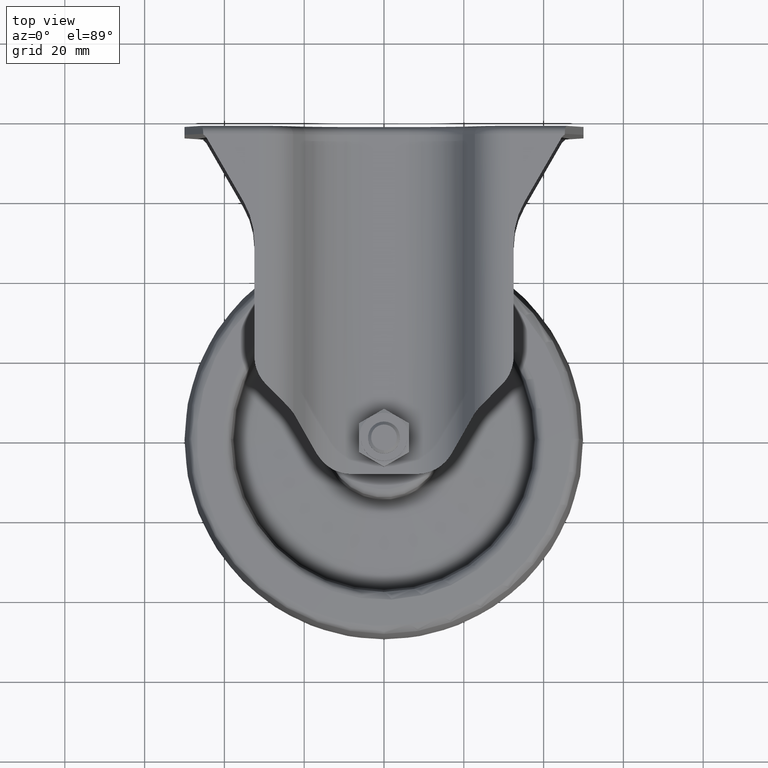
[diagram: clean part render]
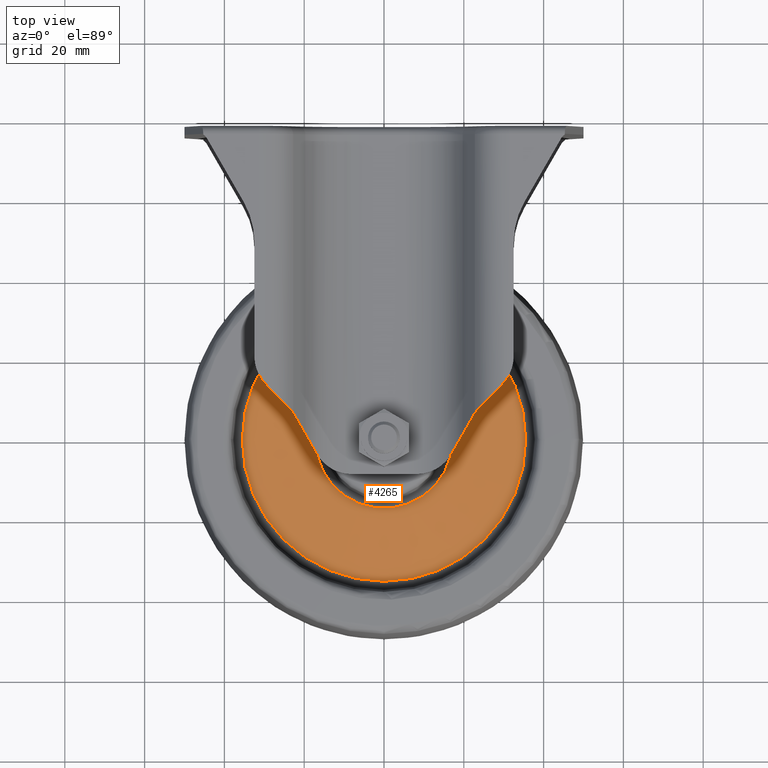
[diagram: same view with one face highlighted and labeled with its STEP entity id]
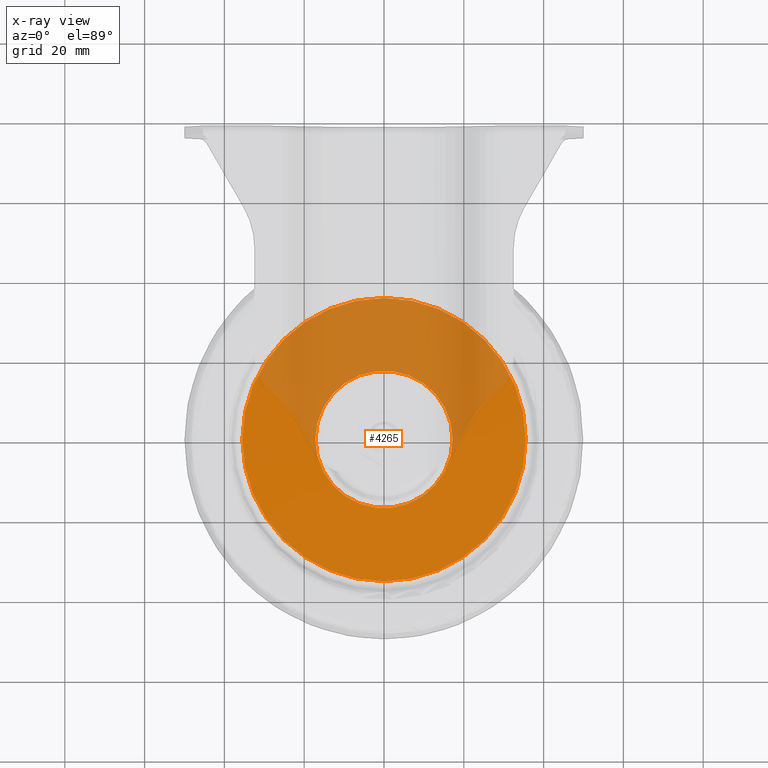
[diagram: x-ray of the same camera — body ghosted, the highlighted face saturated]
A machine part, top view. The second image highlights one B-rep face of the part: STEP entity #4265.
The next image is the same camera in x-ray: the body ghosted, the highlighted face saturated — about 40% of this face is hidden behind the body in this view.
In plain terms, the highlighted conical surface has half-angle 87 deg.
Its self-contained STEP definition (entity closure, byte-faithful):
#190=CONICAL_SURFACE('',#4760,26.3533888425374,1.51843644923507);
#537=FACE_OUTER_BOUND('',#796,.T.);
#796=EDGE_LOOP('',(#3673,#3674,#3675,#3676,#3677,#3678));
#1075=LINE('',#7500,#1341);
#1341=VECTOR('',#5976,26.3533888425374);
#1539=CIRCLE('',#4758,35.5002706639117);
#1540=CIRCLE('',#4759,35.5002706639117);
#1541=CIRCLE('',#4761,17.206507021163);
#1542=CIRCLE('',#4762,17.206507021163);
#1915=VERTEX_POINT('',#7493);
#1916=VERTEX_POINT('',#7495);
#1917=VERTEX_POINT('',#7499);
#1918=VERTEX_POINT('',#7501);
#2504=EDGE_CURVE('',#1915,#1916,#1539,.T.);
#2505=EDGE_CURVE('',#1916,#1915,#1540,.T.);
#2506=EDGE_CURVE('',#1916,#1917,#1075,.T.);
#2507=EDGE_CURVE('',#1917,#1918,#1541,.T.);
#2508=EDGE_CURVE('',#1918,#1917,#1542,.T.);
#3673=ORIENTED_EDGE('',*,*,#2505,.F.);
#3674=ORIENTED_EDGE('',*,*,#2506,.T.);
#3675=ORIENTED_EDGE('',*,*,#2507,.T.);
#3676=ORIENTED_EDGE('',*,*,#2508,.T.);
#3677=ORIENTED_EDGE('',*,*,#2506,.F.);
#3678=ORIENTED_EDGE('',*,*,#2504,.F.);
#4265=ADVANCED_FACE('',(#537),#190,.T.);
#4758=AXIS2_PLACEMENT_3D('',#7496,#5970,#5971);
#4759=AXIS2_PLACEMENT_3D('',#7497,#5972,#5973);
#4760=AXIS2_PLACEMENT_3D('',#7498,#5974,#5975);
#4761=AXIS2_PLACEMENT_3D('',#7502,#5977,#5978);
#4762=AXIS2_PLACEMENT_3D('',#7503,#5979,#5980);
#5970=DIRECTION('center_axis',(0.,0.,-1.));
#5971=DIRECTION('ref_axis',(1.,0.,0.));
#5972=DIRECTION('center_axis',(0.,0.,-1.));
#5973=DIRECTION('ref_axis',(1.,0.,0.));
#5974=DIRECTION('center_axis',(0.,0.,-1.));
#5975=DIRECTION('ref_axis',(1.,0.,0.));
#5976=DIRECTION('',(0.998629534754574,-1.2229684632712E-16,0.0523359562429404));
#5977=DIRECTION('center_axis',(0.,0.,-1.));
#5978=DIRECTION('ref_axis',(1.,0.,0.));
#5979=DIRECTION('center_axis',(0.,0.,-1.));
#5980=DIRECTION('ref_axis',(1.,0.,0.));
#7493=CARTESIAN_POINT('',(35.5002706639117,-4.34752928374242E-15,2.85950965055749));
#7495=CARTESIAN_POINT('',(-35.5002706639117,4.34738570174404E-15,2.85950965055749));
#7496=CARTESIAN_POINT('Origin',(0.,0.,2.85950965055749));
#7497=CARTESIAN_POINT('Origin',(0.,0.,2.85950965055749));
#7498=CARTESIAN_POINT('Origin',(0.,0.,3.33887741418014));
#7499=CARTESIAN_POINT('',(-17.206507021163,-2.10711978252056E-15,3.81824517780279));
#7500=CARTESIAN_POINT('',(-26.3533888425374,3.2273593292699E-15,3.33887741418014));
#7501=CARTESIAN_POINT('',(17.206507021163,-2.10718937479737E-15,3.81824517780279));
#7502=CARTESIAN_POINT('Origin',(0.,0.,3.81824517780279));
#7503=CARTESIAN_POINT('Origin',(0.,0.,3.81824517780279));